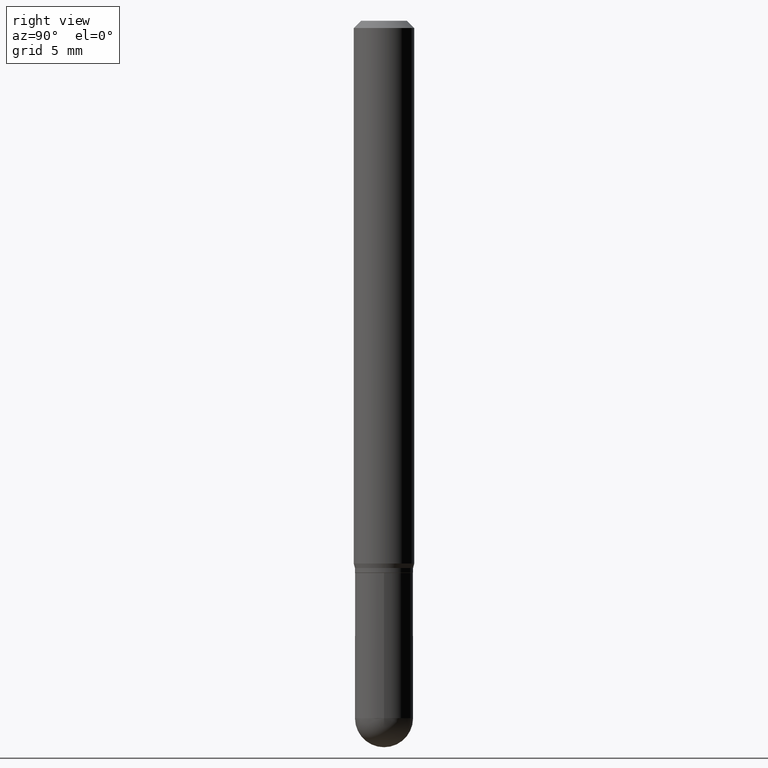
[diagram: clean part render]
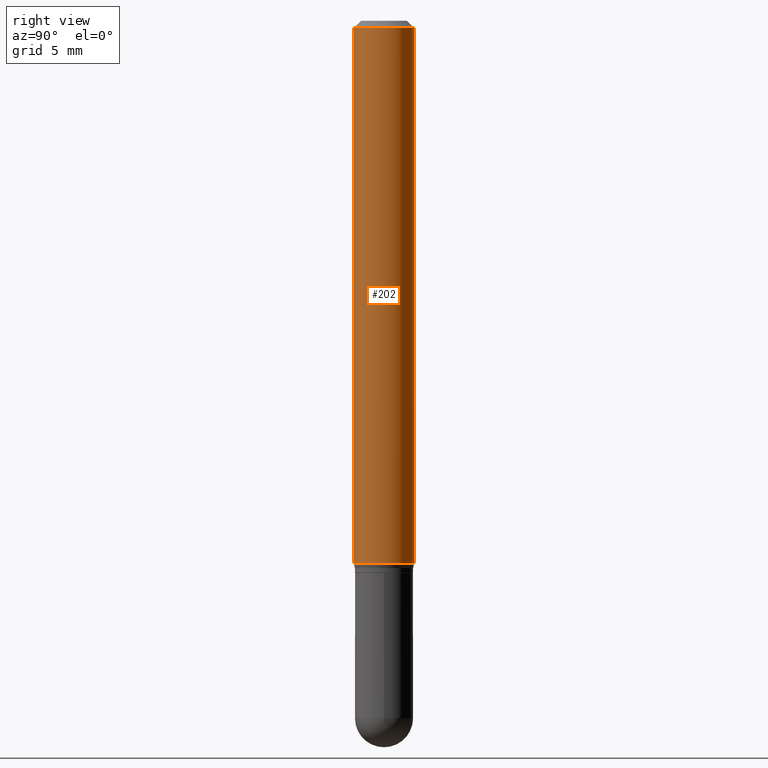
[diagram: same view with one face highlighted and labeled with its STEP entity id]
A machine part, right view. The second image highlights one B-rep face of the part: STEP entity #202.
In plain terms, the highlighted cylindrical surface (edge-blend (fillet) strip) has radius 1.5875 mm, axis along (-0, 0, 1).
Its self-contained STEP definition (entity closure, byte-faithful):
#7 = CIRCLE ( 'NONE', #22, 0.06250000000000000000 ) ;
#16 = DIRECTION ( 'NONE',  ( -2.445620671388312269E-29, 3.491263859228567350E-15, 1.000000000000000000 ) ) ;
#21 = EDGE_CURVE ( 'NONE', #402, #235, #7, .T. ) ;
#22 = AXIS2_PLACEMENT_3D ( 'NONE', #129, #252, #48 ) ;
#40 = ORIENTED_EDGE ( 'NONE', *, *, #471, .T. ) ;
#43 = ORIENTED_EDGE ( 'NONE', *, *, #62, .F. ) ;
#48 = DIRECTION ( 'NONE',  ( -6.982962677686265922E-15, -1.000000000000000000, 3.483106191921935554E-15 ) ) ;
#49 = VECTOR ( 'NONE', #95, 39.37007874015748143 ) ;
#57 = VERTEX_POINT ( 'NONE', #215 ) ;
#62 = EDGE_CURVE ( 'NONE', #86, #402, #440, .T. ) ;
#86 = VERTEX_POINT ( 'NONE', #187 ) ;
#95 = DIRECTION ( 'NONE',  ( -2.445620671388312269E-29, 3.491263859228567350E-15, 1.000000000000000000 ) ) ;
#110 = EDGE_LOOP ( 'NONE', ( #40, #289, #504, #43 ) ) ;
#111 = VECTOR ( 'NONE', #16, 39.37007874015748143 ) ;
#129 = CARTESIAN_POINT ( 'NONE',  ( 3.668431007082470996E-31, -5.236895788842854378E-17, -0.01500000000000000812 ) ) ;
#146 = EDGE_CURVE ( 'NONE', #57, #235, #349, .T. ) ;
#147 = AXIS2_PLACEMENT_3D ( 'NONE', #338, #290, #450 ) ;
#187 = CARTESIAN_POINT ( 'NONE',  ( -4.364351673553640100E-16, -0.06250000000000388578, -1.120669872981078452 ) ) ;
#202 = ADVANCED_FACE ( 'NONE', ( #385 ), #499, .T. ) ;
#215 = CARTESIAN_POINT ( 'NONE',  ( 4.440892098500901277E-16, 0.06249999999999610728, -1.120669872981078896 ) ) ;
#235 = VERTEX_POINT ( 'NONE', #380 ) ;
#252 = DIRECTION ( 'NONE',  ( -2.445620671388312549E-29, 3.491263859228567350E-15, 1.000000000000000000 ) ) ;
#287 = AXIS2_PLACEMENT_3D ( 'NONE', #300, #462, #303 ) ;
#289 = ORIENTED_EDGE ( 'NONE', *, *, #146, .T. ) ;
#290 = DIRECTION ( 'NONE',  ( -2.445620671388312549E-29, 3.491263859228567350E-15, 1.000000000000000000 ) ) ;
#300 = CARTESIAN_POINT ( 'NONE',  ( 0.000000000000000000, 0.000000000000000000, 0.000000000000000000 ) ) ;
#303 = DIRECTION ( 'NONE',  ( -6.982962677686265922E-15, -1.000000000000000000, 3.491263859228567350E-15 ) ) ;
#318 = CARTESIAN_POINT ( 'NONE',  ( -4.364351673553912750E-16, -0.06250000000000005551, -0.01499999999999979128 ) ) ;
#338 = CARTESIAN_POINT ( 'NONE',  ( 2.740733407164640186E-29, -3.912554225665108422E-15, -1.120669872981078674 ) ) ;
#349 = LINE ( 'NONE', #508, #49 ) ;
#373 = CARTESIAN_POINT ( 'NONE',  ( -4.364351673553916201E-16, -0.06250000000000000000, 2.182039912017854594E-16 ) ) ;
#380 = CARTESIAN_POINT ( 'NONE',  ( 4.440892098500901277E-16, 0.06249999999999995143, -0.01500000000000022669 ) ) ;
#385 = FACE_OUTER_BOUND ( 'NONE', #110, .T. ) ;
#402 = VERTEX_POINT ( 'NONE', #318 ) ;
#440 = LINE ( 'NONE', #373, #111 ) ;
#450 = DIRECTION ( 'NONE',  ( -6.982962677686265922E-15, -1.000000000000000000, 4.370956789862821150E-15 ) ) ;
#453 = CIRCLE ( 'NONE', #147, 0.06250000000000000000 ) ;
#462 = DIRECTION ( 'NONE',  ( -2.445620671388312549E-29, 3.491263859228567350E-15, 1.000000000000000000 ) ) ;
#471 = EDGE_CURVE ( 'NONE', #86, #57, #453, .T. ) ;
#499 = CYLINDRICAL_SURFACE ( 'NONE', #287, 0.06250000000000000000 ) ;
#504 = ORIENTED_EDGE ( 'NONE', *, *, #21, .F. ) ;
#508 = CARTESIAN_POINT ( 'NONE',  ( 4.440892098500625669E-16, 0.06250000000000000000, -2.182039912017854594E-16 ) ) ;